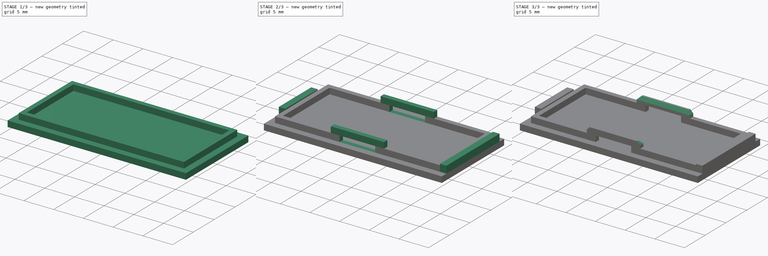
[diagram: build sequence overview — one tinted view per stage of 3, left to right]
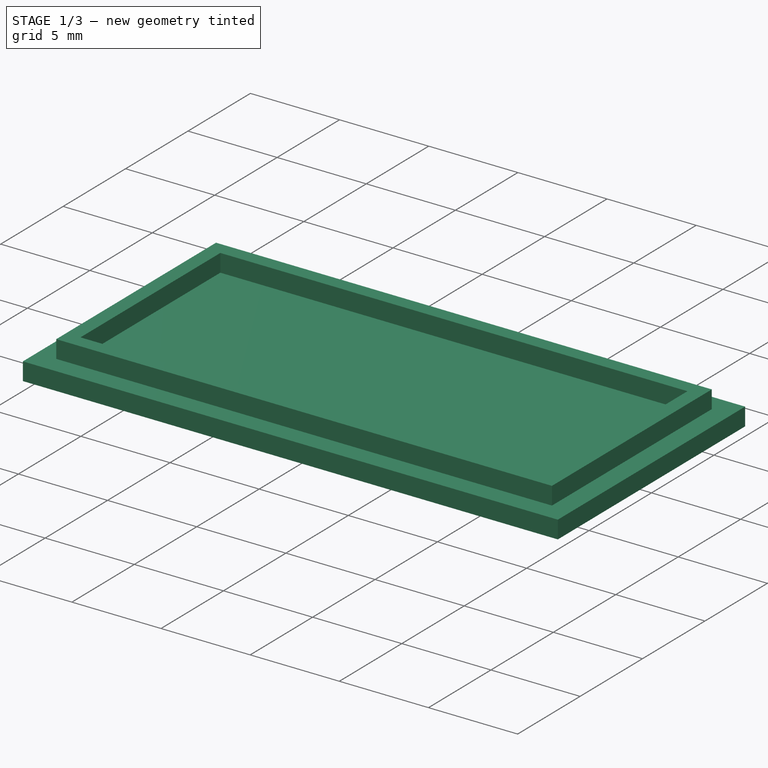
[diagram: stage 1 of 3 — iso view after this stage's code; geometry added in this stage tinted green]
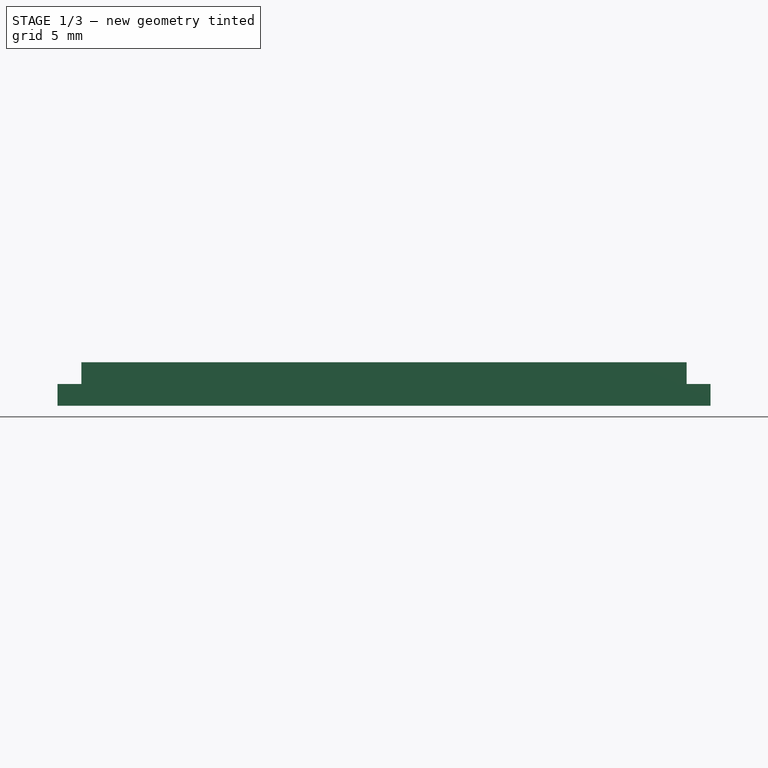
[diagram: stage 1 of 3 — front view after this stage's code; geometry added in this stage tinted green]
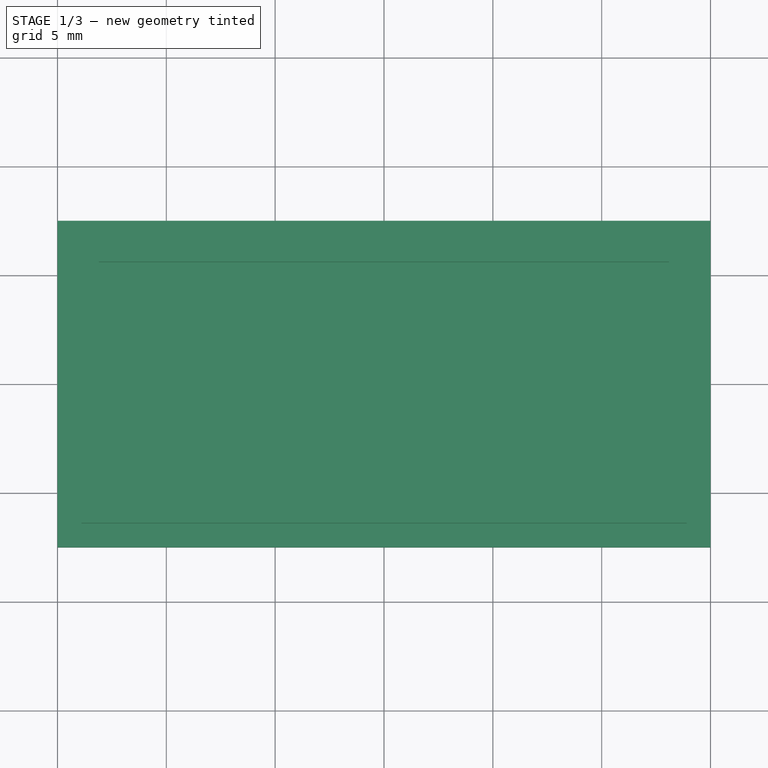
[diagram: stage 1 of 3 — top view after this stage's code; geometry added in this stage tinted green]
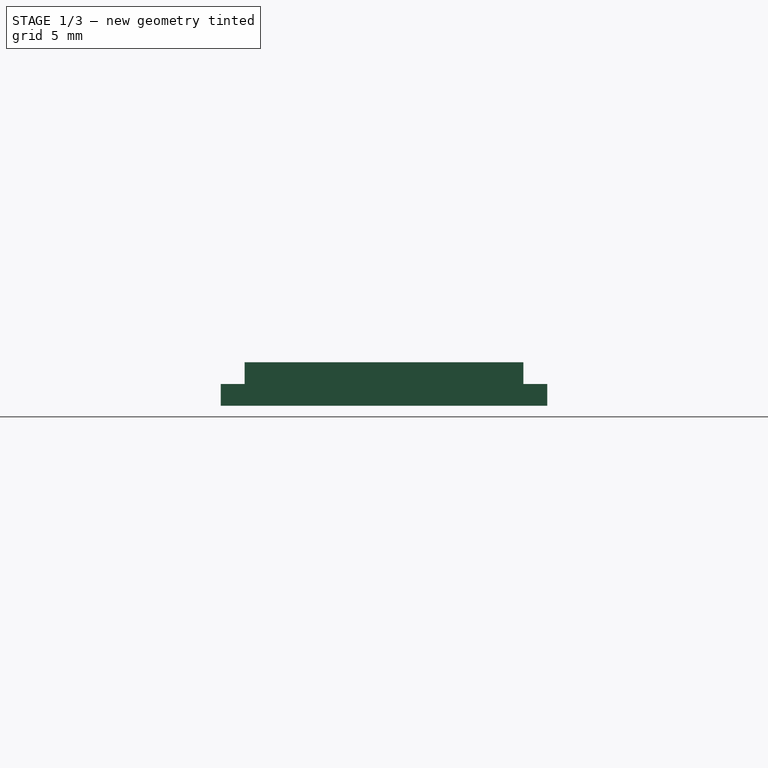
[diagram: stage 1 of 3 — right view after this stage's code; geometry added in this stage tinted green]
FCSTD DOCUMENT  (FreeCAD 0.17R13522 (Git))
Label: top
License: All rights reserved
LicenseURL: http://en.wikipedia.org/wiki/All_rights_reserved
objects: Sketcher::SketchObject×5, PartDesign::Pad×4, PartDesign::Chamfer×2, PartDesign::Pocket×1, PartDesign::Body×1
note: 18 computed .brp shape members not serialized (recipe doc carries the construction recipe); baked Part::Feature solids carry a one-line shape summary decoded from their .brp

FEATURE [Sketcher::SketchObject] Sketch
  MapMode = 5
  Support = -> [XY_Plane]
  sketch-geometry (4):
    g0: LineSegment StartX=-15 StartY=7.5 StartZ=0 EndX=15 EndY=7.5 EndZ=0
    g1: LineSegment StartX=15 StartY=7.5 StartZ=0 EndX=15 EndY=-7.5 EndZ=0
    g2: LineSegment StartX=15 StartY=-7.5 StartZ=0 EndX=-15 EndY=-7.5 EndZ=0
    g3: LineSegment StartX=-15 StartY=-7.5 StartZ=0 EndX=-15 EndY=7.5 EndZ=0
  constraints (12):
    c: Coincident(g0,g1)
    c: Coincident(g1,g2)
    c: Coincident(g2,g3)
    c: Coincident(g3,g0)
    c: Horizontal(g0)
    c: Horizontal(g2)
    c: Vertical(g1)
    c: Vertical(g3)
    c: Symmetric(g0,g0,g-2)
    c: Symmetric(g0,g2,g-1)
    c: DistanceX(g0,g0) = 30
    c: DistanceY(g3,g3) = 15
FEATURE [PartDesign::Pad] Pad
  Length = 1
  Length2 = 100
  Profile = -> Sketch
  Type = 0
FEATURE [Sketcher::SketchObject] Sketch001
  MapMode = 5
  Placement = pos=(0,0,1) rot=(0,0,1;0rad)
  Support = -> [Pad]
  sketch-geometry (8):
    g0: LineSegment StartX=-13.1 StartY=5.6 StartZ=0 EndX=13.1 EndY=5.6 EndZ=0
    g1: LineSegment StartX=13.1 StartY=5.6 StartZ=0 EndX=13.1 EndY=-5.6 EndZ=0
    g2: LineSegment StartX=13.1 StartY=-5.6 StartZ=0 EndX=-13.1 EndY=-5.6 EndZ=0
    g3: LineSegment StartX=-13.1 StartY=-5.6 StartZ=0 EndX=-13.1 EndY=5.6 EndZ=0
    g4: LineSegment StartX=-13.9 StartY=6.4 StartZ=0 EndX=13.9 EndY=6.4 EndZ=0
    g5: LineSegment StartX=13.9 StartY=6.4 StartZ=0 EndX=13.9 EndY=-6.4 EndZ=0
    g6: LineSegment StartX=13.9 StartY=-6.4 StartZ=0 EndX=-13.9 EndY=-6.4 EndZ=0
    g7: LineSegment StartX=-13.9 StartY=-6.4 StartZ=0 EndX=-13.9 EndY=6.4 EndZ=0
  constraints (24):
    c: Coincident(g0,g1)
    c: Coincident(g1,g2)
    c: Coincident(g2,g3)
    c: Coincident(g3,g0)
    c: Horizontal(g0)
    c: Horizontal(g2)
    c: Vertical(g1)
    c: Vertical(g3)
    c: Coincident(g4,g5)
    c: Coincident(g5,g6)
    c: Coincident(g6,g7)
    c: Coincident(g7,g4)
    c: Horizontal(g4)
    c: Horizontal(g6)
    c: Vertical(g5)
    c: Vertical(g7)
    c: Symmetric(g4,g4,g-2)
    c: Symmetric(g4,g6,g-1)
    c: Symmetric(g0,g0,g-2)
    c: Symmetric(g0,g2,g-1)
    c: DistanceX(g4,g4) = 27.8
    c: DistanceY(g7,g7) = 12.8
    c: DistanceX(g4,g0) = 0.8
    c: DistanceY(g0,g4) = 0.8
FEATURE [PartDesign::Pad] Pad001
  BaseFeature = -> Pad
  Length = 1
  Length2 = 100
  Profile = -> Sketch001
  Type = 0
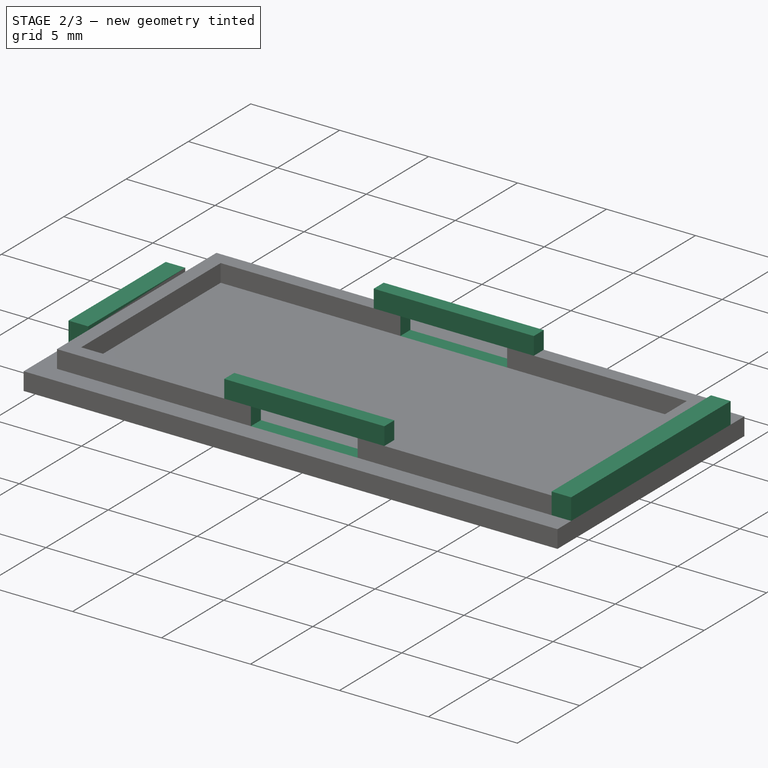
[diagram: stage 2 of 3 — iso view after this stage's code; geometry added in this stage tinted green]
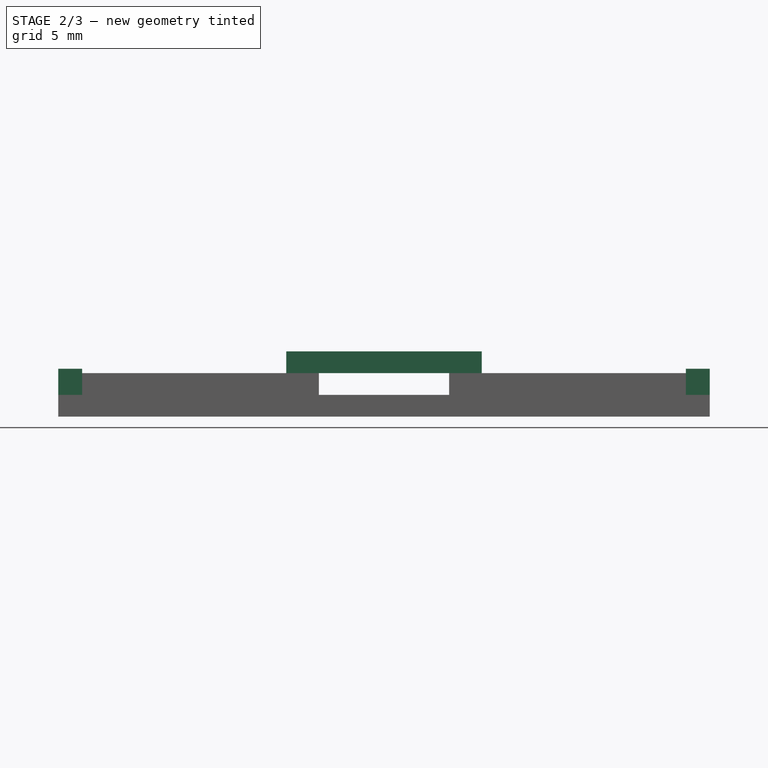
[diagram: stage 2 of 3 — front view after this stage's code; geometry added in this stage tinted green]
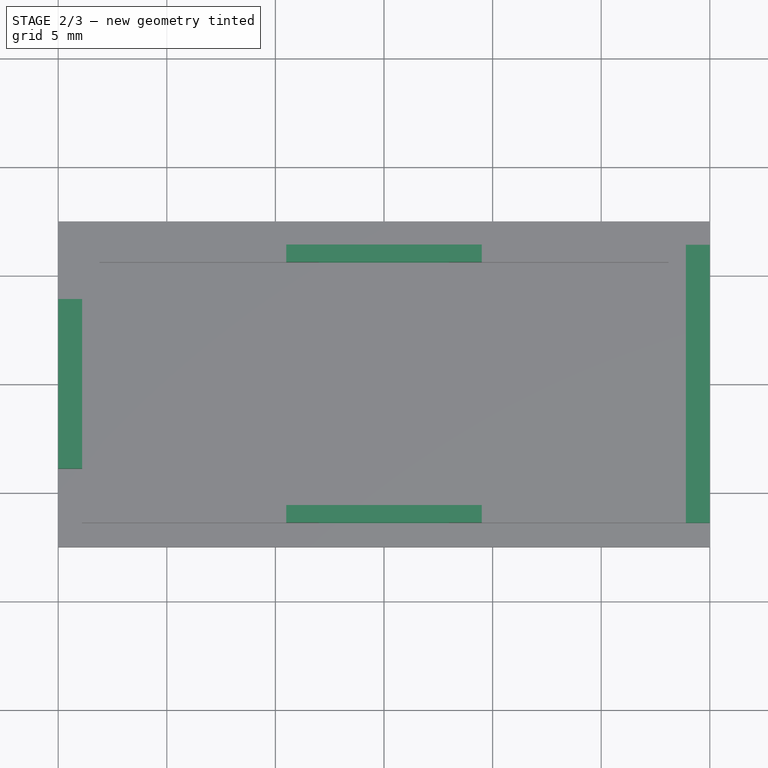
[diagram: stage 2 of 3 — top view after this stage's code; geometry added in this stage tinted green]
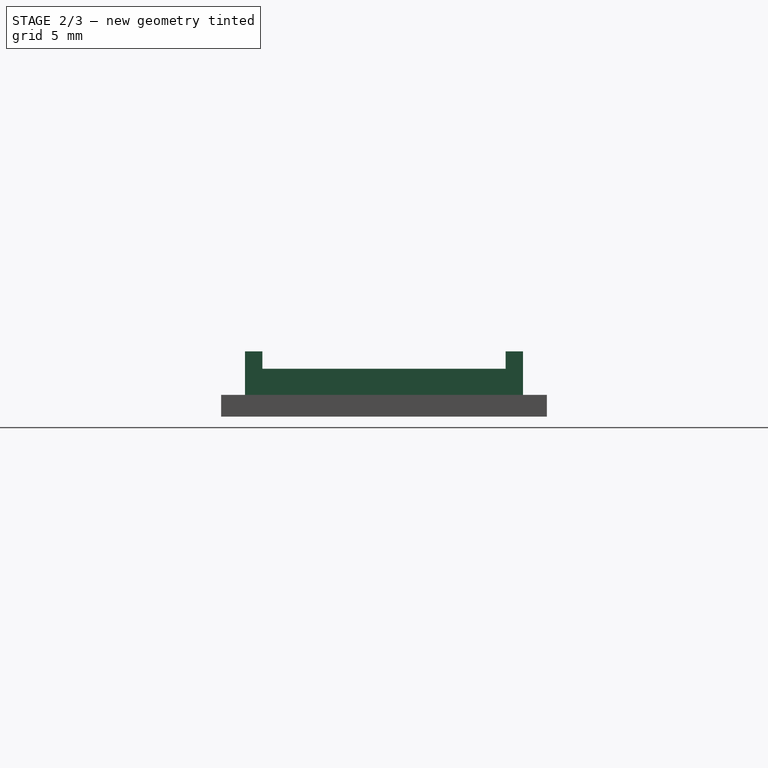
[diagram: stage 2 of 3 — right view after this stage's code; geometry added in this stage tinted green]
FEATURE [Sketcher::SketchObject] Sketch002
  MapMode = 5
  Placement = pos=(0,0,1) rot=(0,0,1;0rad)
  Support = -> [Pad001]
  sketch-geometry (8):
    g0: LineSegment StartX=-15 StartY=3.9 StartZ=0 EndX=-13.9 EndY=3.9 EndZ=0
    g1: LineSegment StartX=-13.9 StartY=3.9 StartZ=0 EndX=-13.9 EndY=-3.9 EndZ=0
    g2: LineSegment StartX=-13.9 StartY=-3.9 StartZ=0 EndX=-15 EndY=-3.9 EndZ=0
    g3: LineSegment StartX=-15 StartY=-3.9 StartZ=0 EndX=-15 EndY=3.9 EndZ=0
    g4: LineSegment StartX=13.9 StartY=6.4 StartZ=0 EndX=15 EndY=6.4 EndZ=0
    g5: LineSegment StartX=15 StartY=6.4 StartZ=0 EndX=15 EndY=-6.4 EndZ=0
    g6: LineSegment StartX=15 StartY=-6.4 StartZ=0 EndX=13.9 EndY=-6.4 EndZ=0
    g7: LineSegment StartX=13.9 StartY=-6.4 StartZ=0 EndX=13.9 EndY=6.4 EndZ=0
  constraints (24):
    c: Coincident(g0,g1)
    c: Coincident(g1,g2)
    c: Coincident(g2,g3)
    c: Coincident(g3,g0)
    c: Horizontal(g0)
    c: Horizontal(g2)
    c: Vertical(g1)
    c: Vertical(g3)
    c: Coincident(g4,g5)
    c: Coincident(g5,g6)
    c: Coincident(g6,g7)
    c: Coincident(g7,g4)
    c: Horizontal(g4)
    c: Horizontal(g6)
    c: Vertical(g5)
    c: Vertical(g7)
    c: DistanceX(g0,g0) = 1.1
    c: DistanceX(g0,g-1) = 15
    c: Symmetric(g0,g2,g-1)
    c: DistanceY(g3,g3) = 7.8
    c: DistanceX(g-1,g4) = 15
    c: DistanceX(g4,g4) = 1.1
    c: Symmetric(g4,g5,g-1)
    c: DistanceY(g5,g5) = 12.8
FEATURE [PartDesign::Pad] Pad002
  BaseFeature = -> Pad001
  Length = 1.2
  Length2 = 100
  Profile = -> Sketch002
  Type = 0
FEATURE [Sketcher::SketchObject] Sketch003
  MapMode = 5
  Placement = pos=(0,0,2) rot=(0,0,1;0rad)
  Support = -> [Pad002]
  sketch-geometry (10):
    g0: LineSegment StartX=-4.5 StartY=6.4 StartZ=0 EndX=4.5 EndY=6.4 EndZ=0
    g1: LineSegment StartX=4.5 StartY=6.4 StartZ=0 EndX=4.5 EndY=5.6 EndZ=0
    g2: LineSegment StartX=4.5 StartY=5.6 StartZ=0 EndX=-4.5 EndY=5.6 EndZ=0
    g3: LineSegment StartX=-4.5 StartY=5.6 StartZ=0 EndX=-4.5 EndY=6.4 EndZ=0
    g4: LineSegment StartX=-4.5 StartY=-5.6 StartZ=0 EndX=4.5 EndY=-5.6 EndZ=0
    g5: LineSegment StartX=4.5 StartY=-5.6 StartZ=0 EndX=4.5 EndY=-6.4 EndZ=0
    g6: LineSegment StartX=4.5 StartY=-6.4 StartZ=0 EndX=-4.5 EndY=-6.4 EndZ=0
    g7: LineSegment StartX=-4.5 StartY=-6.4 StartZ=0 EndX=-4.5 EndY=-5.6 EndZ=0
    g8: LineSegment [constr] StartX=-4.5 StartY=5.6 StartZ=0 EndX=-4.5 EndY=-5.6 EndZ=0
    g9: LineSegment [constr] StartX=4.5 StartY=-5.6 StartZ=0 EndX=4.5 EndY=5.6 EndZ=0
  constraints (28):
    c: Coincident(g0,g1)
    c: Coincident(g1,g2)
    c: Coincident(g2,g3)
    c: Coincident(g3,g0)
    c: Horizontal(g0)
    c: Horizontal(g2)
    c: Vertical(g1)
    c: Vertical(g3)
    c: Coincident(g4,g5)
    c: Coincident(g5,g6)
    c: Coincident(g6,g7)
    c: Coincident(g7,g4)
    c: Horizontal(g4)
    c: Horizontal(g6)
    c: Vertical(g5)
    c: Vertical(g7)
    c: Symmetric(g0,g0,g-2)
    c: Coincident(g8,g2)
    c: Coincident(g8,g4)
    c: Vertical(g8)
    c: Coincident(g9,g4)
    c: Coincident(g9,g1)
    c: Vertical(g9)
    c: Symmetric(g2,g4,g-1)
    c: Symmetric(g0,g6,g-1)
    c: DistanceY(g1,g1) = 0.8
    c: DistanceX(g6,g6) = 9
    c: DistanceY(g9,g9) = 11.2
FEATURE [PartDesign::Pad] Pad003
  BaseFeature = -> Pad002
  Length = 1
  Length2 = 100
  Profile = -> Sketch003
  Type = 0
FEATURE [Sketcher::SketchObject] Sketch004
  MapMode = 5
  Placement = pos=(0,6.4,0) rot=(0,0.707107,0.707107;3.14159rad)
  Support = -> [Pad003]
  sketch-geometry (4):
    g0: LineSegment StartX=-3 StartY=2 StartZ=0 EndX=3 EndY=2 EndZ=0
    g1: LineSegment StartX=3 StartY=2 StartZ=0 EndX=3 EndY=1 EndZ=0
    g2: LineSegment StartX=3 StartY=1 StartZ=0 EndX=-3 EndY=1 EndZ=0
    g3: LineSegment StartX=-3 StartY=1 StartZ=0 EndX=-3 EndY=2 EndZ=0
  constraints (12):
    c: Coincident(g0,g1)
    c: Coincident(g1,g2)
    c: Coincident(g2,g3)
    c: Coincident(g3,g0)
    c: Horizontal(g0)
    c: Horizontal(g2)
    c: Vertical(g1)
    c: Vertical(g3)
    c: DistanceX(g0,g0) = 6
    c: Symmetric(g0,g0,g-2)
    c: DistanceY(g3,g3) = 1
    c: DistanceY(g-1,g2) = 1
FEATURE [PartDesign::Pocket] Pocket
  BaseFeature = -> Pad003
  Length = 5
  Length2 = 100
  Profile = -> Sketch004
  Type = 1
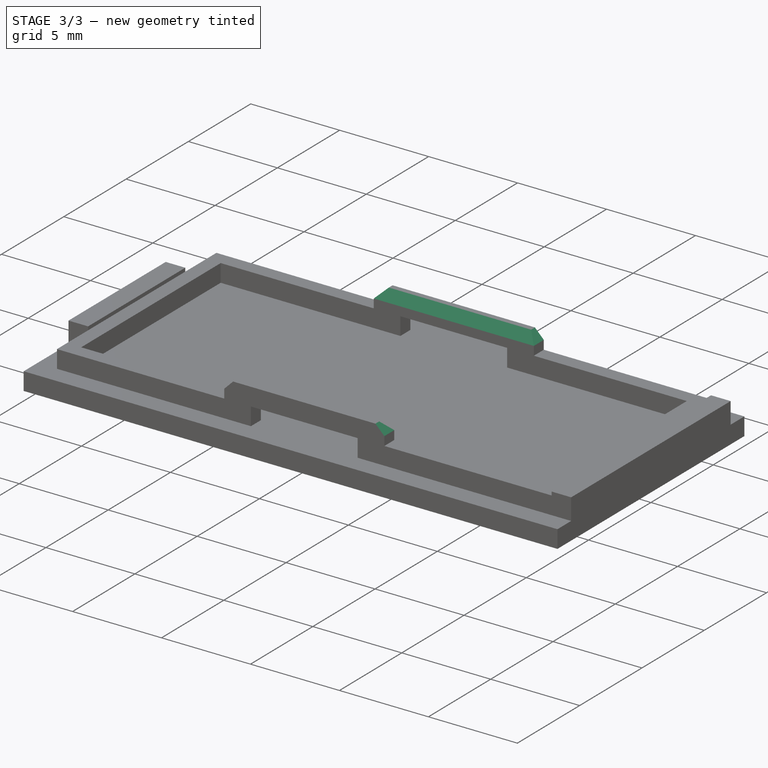
[diagram: stage 3 of 3 — iso view after this stage's code; geometry added in this stage tinted green]
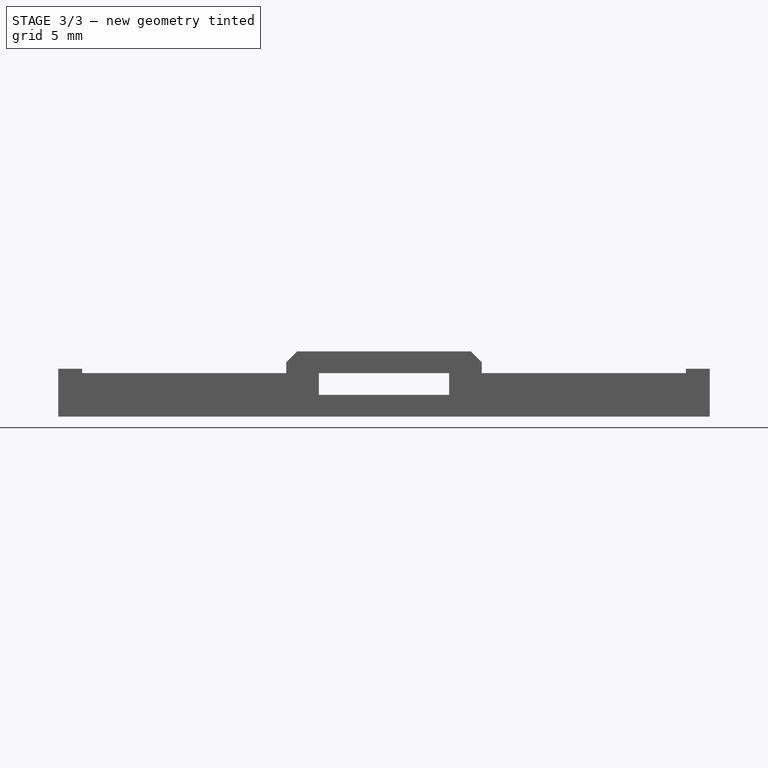
[diagram: stage 3 of 3 — front view after this stage's code; geometry added in this stage tinted green]
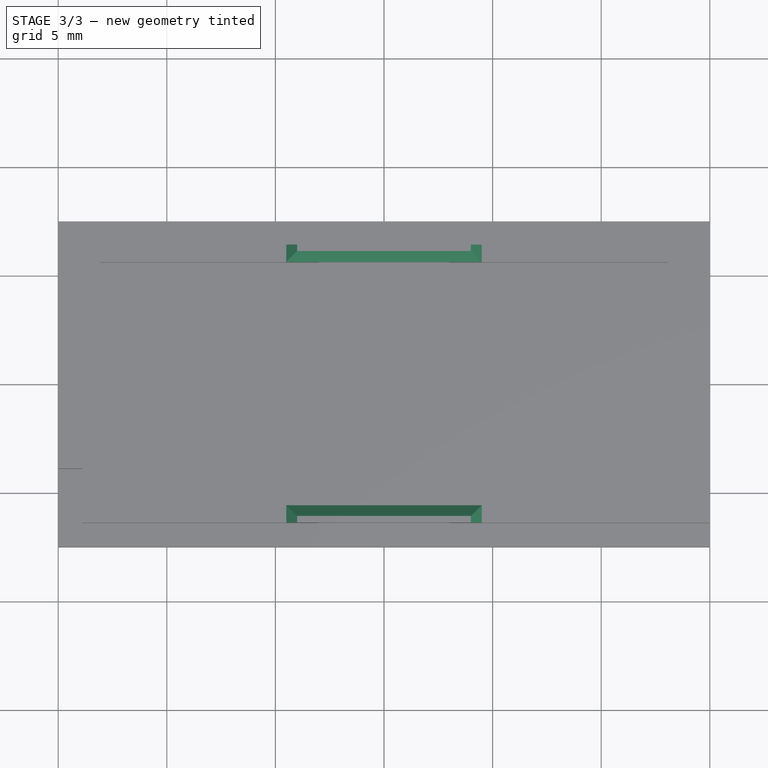
[diagram: stage 3 of 3 — top view after this stage's code; geometry added in this stage tinted green]
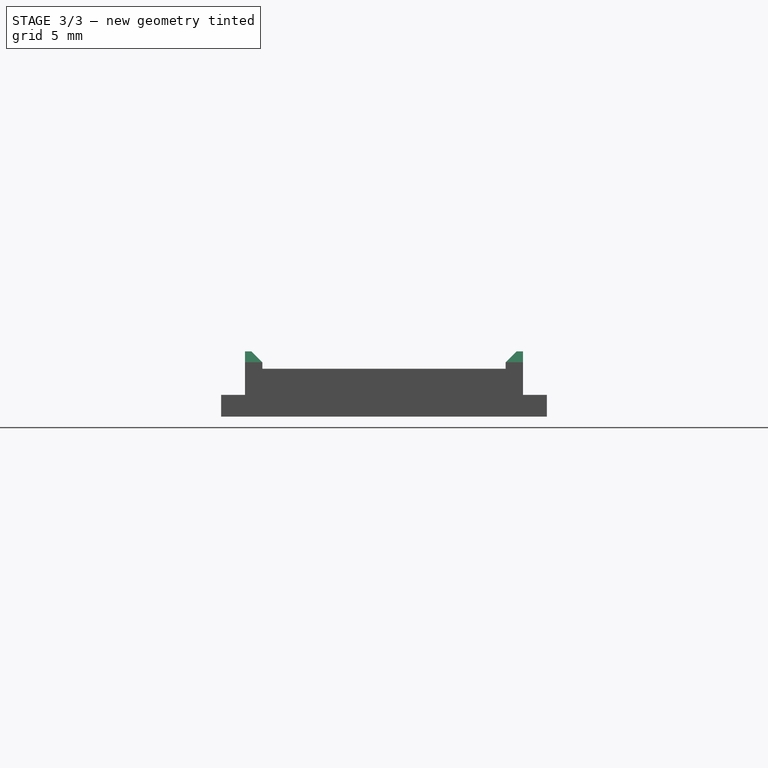
[diagram: stage 3 of 3 — right view after this stage's code; geometry added in this stage tinted green]
FEATURE [PartDesign::Chamfer] Chamfer
  Base = -> Pocket [Edge105,Edge115,Edge117,Edge128]
  BaseFeature = -> Pocket
  Size = 0.5
FEATURE [PartDesign::Chamfer] Chamfer001
  Base = -> Chamfer [Edge19,Edge130]
  BaseFeature = -> Chamfer
  Size = 0.5
FEATURE [PartDesign::Body] Body
  Group = -> [Sketch,Pad,Sketch001,Pad001,Sketch002,Pad002,Sketch003,Pad003,Sketch004,Pocket,Chamfer,Chamfer001]
  Origin = -> Origin
  Tip = -> Chamfer001
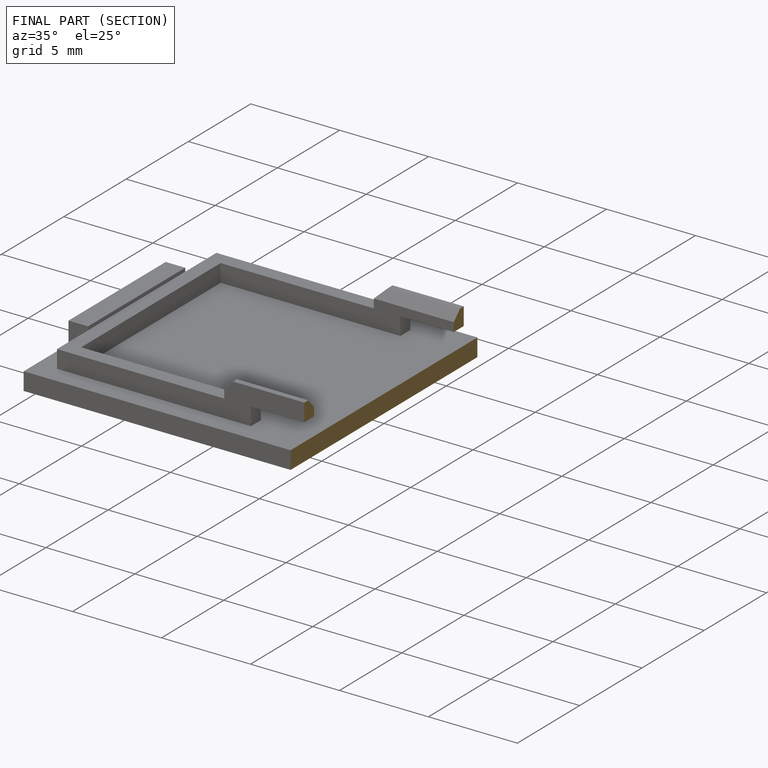
[diagram: finished part — half-section view (interior)]
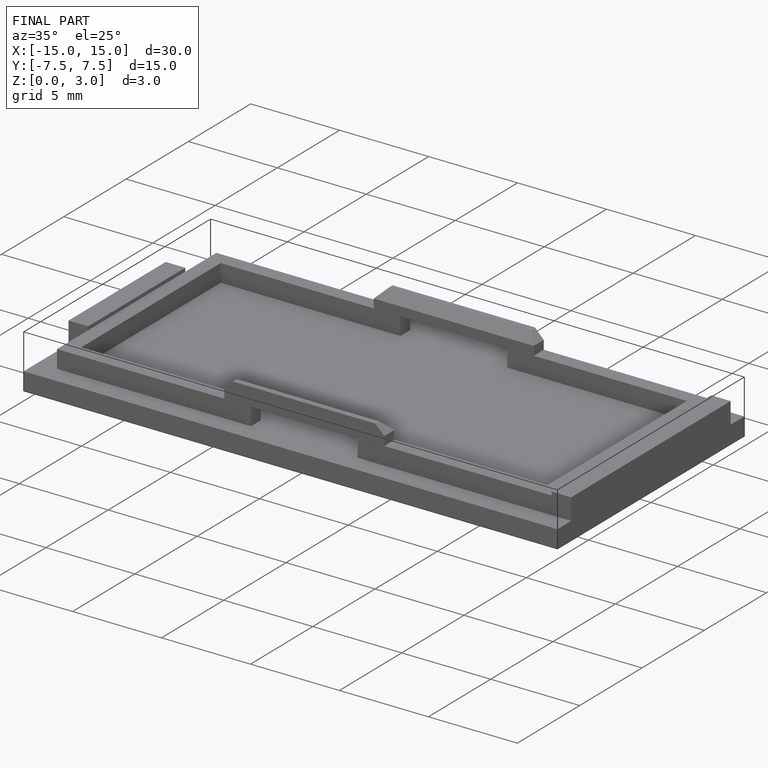
[diagram: finished part — iso view with bounding-box wireframe]
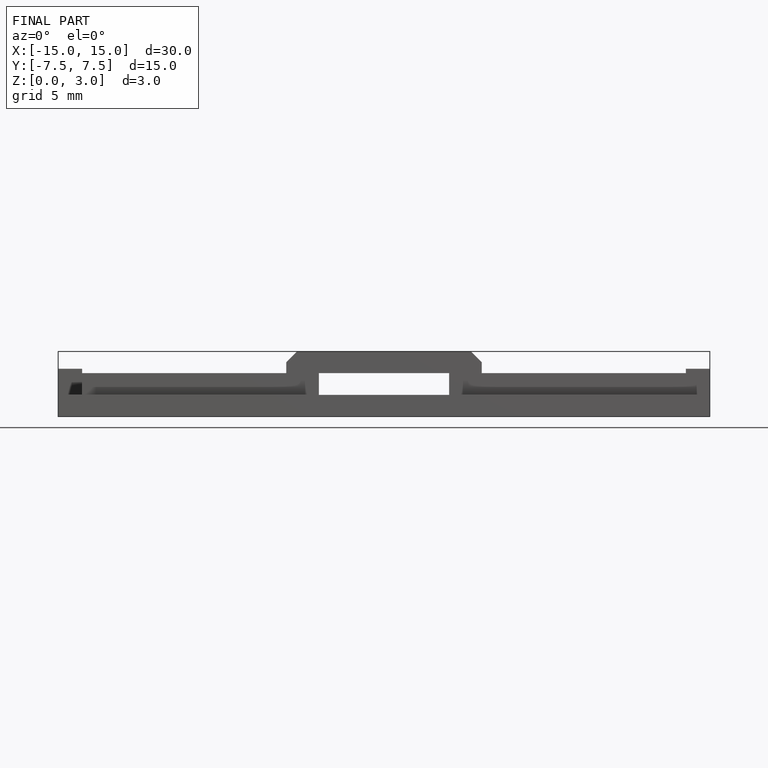
[diagram: finished part — front view with bounding-box wireframe]
